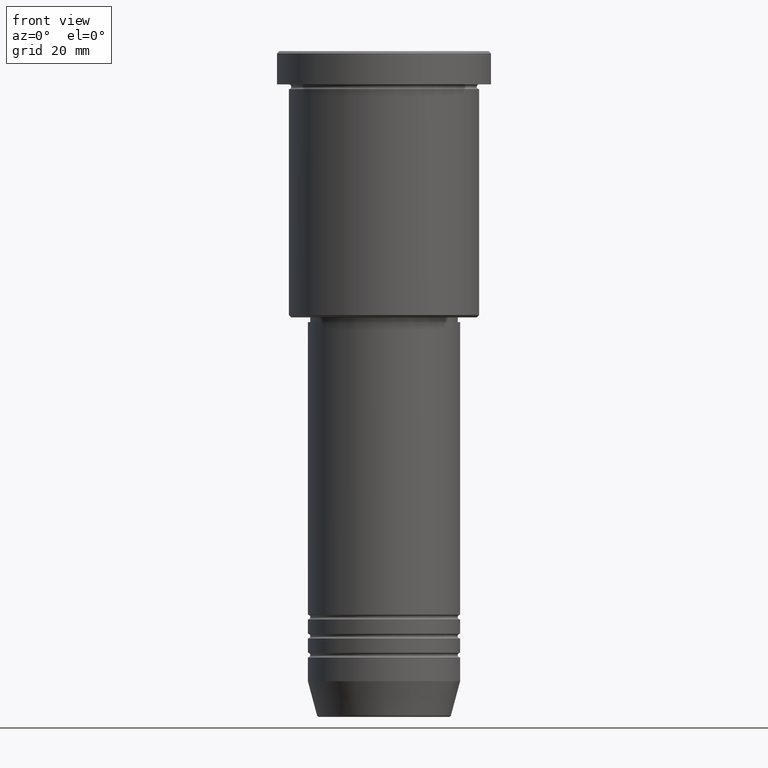
[diagram: clean part render]
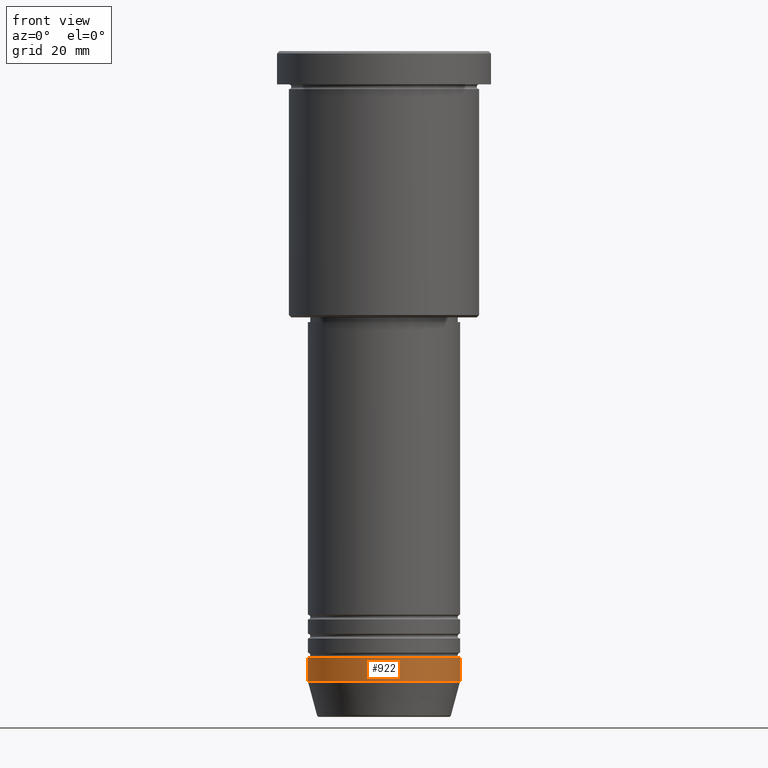
[diagram: same view with one face highlighted and labeled with its STEP entity id]
A machine part, front view. The second image highlights one B-rep face of the part: STEP entity #922.
In plain terms, the highlighted cylindrical surface (partial cylindrical patch) has radius 16 mm, axis along (-0, -0, 1).
Its self-contained STEP definition (entity closure, byte-faithful):
#10 = DIRECTION ( 'NONE',  ( -0.000000000000000000, -0.000000000000000000, 1.000000000000000000 ) ) ;
#12 = CIRCLE ( 'NONE', #396, 16.00000000000000000 ) ;
#24 = CARTESIAN_POINT ( 'NONE',  ( -16.00000000000000000, 1.959434878635765131E-15, -132.5000000000000000 ) ) ;
#45 = ORIENTED_EDGE ( 'NONE', *, *, #813, .F. ) ;
#99 = DIRECTION ( 'NONE',  ( 1.000000000000000000, 0.000000000000000000, 0.000000000000000000 ) ) ;
#132 = DIRECTION ( 'NONE',  ( -0.000000000000000000, -0.000000000000000000, 1.000000000000000000 ) ) ;
#179 = FACE_OUTER_BOUND ( 'NONE', #735, .T. ) ;
#258 = AXIS2_PLACEMENT_3D ( 'NONE', #1085, #10, #99 ) ;
#339 = DIRECTION ( 'NONE',  ( -0.000000000000000000, -0.000000000000000000, 1.000000000000000000 ) ) ;
#358 = DIRECTION ( 'NONE',  ( -0.000000000000000000, -0.000000000000000000, 1.000000000000000000 ) ) ;
#396 = AXIS2_PLACEMENT_3D ( 'NONE', #631, #132, #946 ) ;
#432 = EDGE_CURVE ( 'NONE', #655, #970, #809, .T. ) ;
#453 = CIRCLE ( 'NONE', #486, 16.00000000000000000 ) ;
#486 = AXIS2_PLACEMENT_3D ( 'NONE', #531, #339, #788 ) ;
#531 = CARTESIAN_POINT ( 'NONE',  ( 0.000000000000000000, 0.000000000000000000, -127.5000000000000000 ) ) ;
#587 = ORIENTED_EDGE ( 'NONE', *, *, #432, .F. ) ;
#613 = VERTEX_POINT ( 'NONE', #742 ) ;
#614 = EDGE_CURVE ( 'NONE', #655, #1064, #12, .T. ) ;
#631 = CARTESIAN_POINT ( 'NONE',  ( 0.000000000000000000, 0.000000000000000000, -132.5000000000000000 ) ) ;
#655 = VERTEX_POINT ( 'NONE', #24 ) ;
#658 = VECTOR ( 'NONE', #929, 1000.000000000000000 ) ;
#700 = ORIENTED_EDGE ( 'NONE', *, *, #614, .T. ) ;
#730 = ORIENTED_EDGE ( 'NONE', *, *, #1059, .T. ) ;
#733 = CYLINDRICAL_SURFACE ( 'NONE', #258, 16.00000000000000000 ) ;
#735 = EDGE_LOOP ( 'NONE', ( #587, #700, #730, #45 ) ) ;
#742 = CARTESIAN_POINT ( 'NONE',  ( 16.00000000000000000, 0.000000000000000000, -127.5000000000000000 ) ) ;
#788 = DIRECTION ( 'NONE',  ( 1.000000000000000000, 0.000000000000000000, 0.000000000000000000 ) ) ;
#809 = LINE ( 'NONE', #984, #868 ) ;
#813 = EDGE_CURVE ( 'NONE', #970, #613, #453, .T. ) ;
#836 = CARTESIAN_POINT ( 'NONE',  ( -16.00000000000000000, 1.959434878635765131E-15, -127.5000000000000000 ) ) ;
#868 = VECTOR ( 'NONE', #358, 1000.000000000000000 ) ;
#922 = ADVANCED_FACE ( 'NONE', ( #179 ), #733, .T. ) ;
#929 = DIRECTION ( 'NONE',  ( -0.000000000000000000, -0.000000000000000000, 1.000000000000000000 ) ) ;
#946 = DIRECTION ( 'NONE',  ( 1.000000000000000000, 0.000000000000000000, 0.000000000000000000 ) ) ;
#970 = VERTEX_POINT ( 'NONE', #836 ) ;
#984 = CARTESIAN_POINT ( 'NONE',  ( -16.00000000000000000, 1.959434878635765131E-15, 0.000000000000000000 ) ) ;
#1059 = EDGE_CURVE ( 'NONE', #1064, #613, #1183, .T. ) ;
#1064 = VERTEX_POINT ( 'NONE', #1104 ) ;
#1085 = CARTESIAN_POINT ( 'NONE',  ( 0.000000000000000000, 0.000000000000000000, 0.000000000000000000 ) ) ;
#1104 = CARTESIAN_POINT ( 'NONE',  ( 16.00000000000000000, 0.000000000000000000, -132.5000000000000000 ) ) ;
#1123 = CARTESIAN_POINT ( 'NONE',  ( 16.00000000000000000, 0.000000000000000000, 0.000000000000000000 ) ) ;
#1183 = LINE ( 'NONE', #1123, #658 ) ;